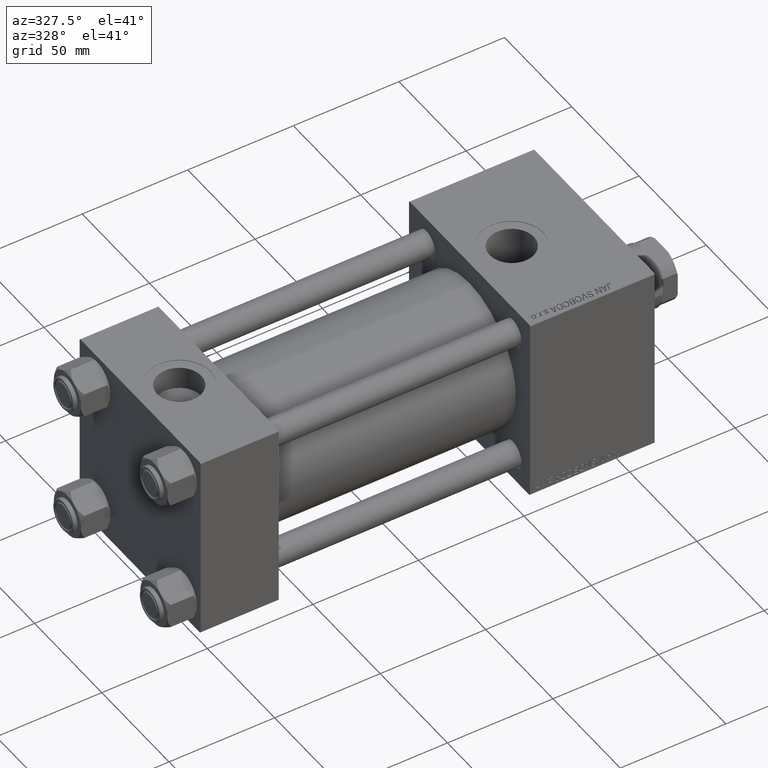
[diagram: clean part render]
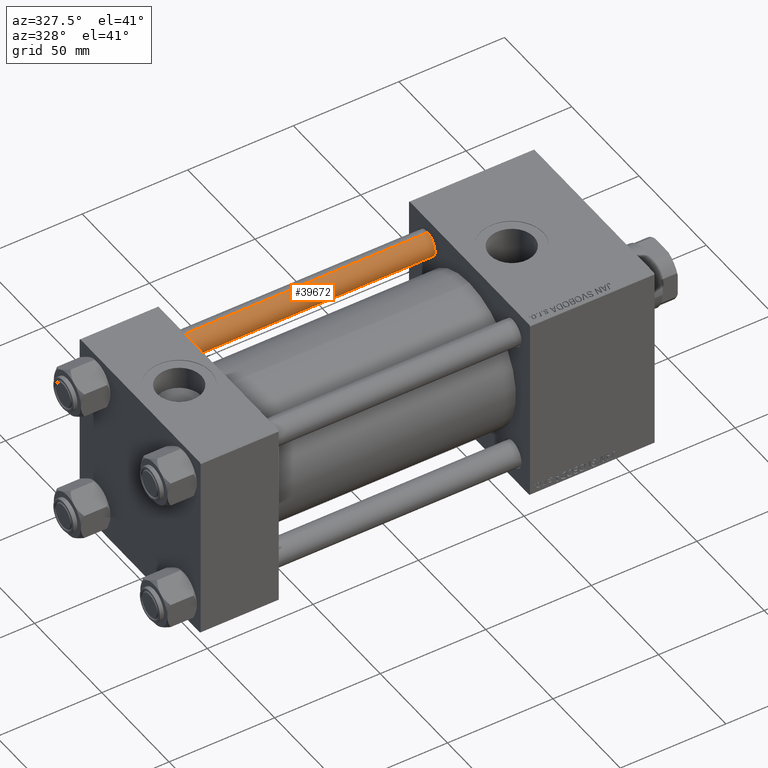
[diagram: same view with one face highlighted and labeled with its STEP entity id]
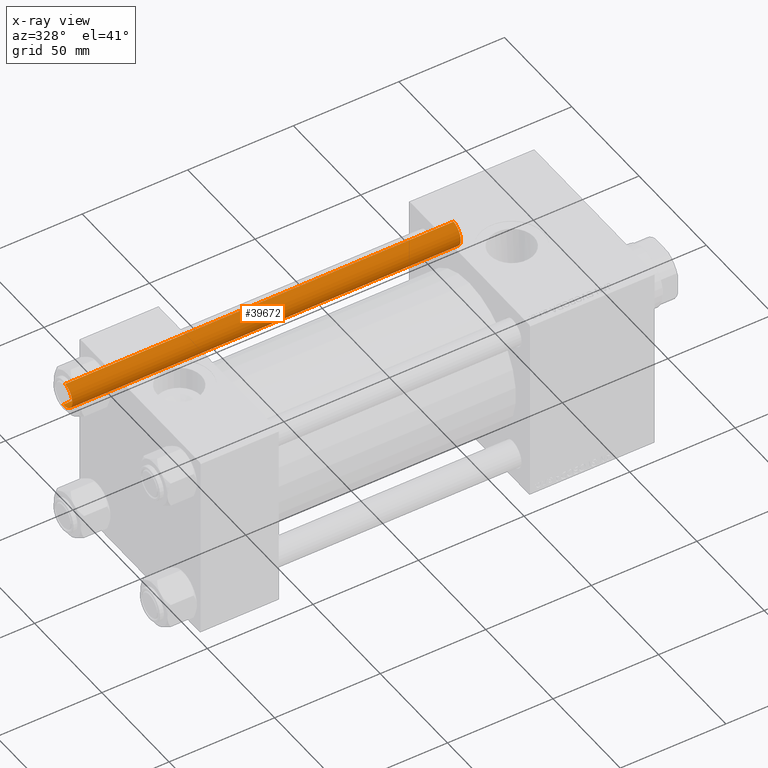
[diagram: x-ray of the same camera — body ghosted, the highlighted face saturated]
A machine part, auxiliary view. The second image highlights one B-rep face of the part: STEP entity #39672.
The next image is the same camera in x-ray: the body ghosted, the highlighted face saturated — about 0% of this face is hidden behind the body in this view.
In plain terms, the highlighted cylindrical surface (edge-blend (fillet) strip) has radius 6 mm, axis along (-1, 0, 0).
Its self-contained STEP definition (entity closure, byte-faithful):
#241 = ORIENTED_EDGE ( 'NONE', *, *, #25526, .T. ) ;
#2917 = CIRCLE ( 'NONE', #14301, 6.000000000000000888 ) ;
#3498 = EDGE_CURVE ( 'NONE', #10772, #16057, #17576, .T. ) ;
#3685 = CARTESIAN_POINT ( 'NONE',  ( -6.000000000000000888, 0.000000000000000000, 0.5000000000000281997 ) ) ;
#5656 = DIRECTION ( 'NONE',  ( 1.000000000000000000, 0.000000000000000000, 0.000000000000000000 ) ) ;
#6215 = ORIENTED_EDGE ( 'NONE', *, *, #47680, .T. ) ;
#7481 = VERTEX_POINT ( 'NONE', #11544 ) ;
#9593 = ORIENTED_EDGE ( 'NONE', *, *, #22438, .T. ) ;
#10772 = VERTEX_POINT ( 'NONE', #13963 ) ;
#10935 = VECTOR ( 'NONE', #25708, 1000.000000000000000 ) ;
#11544 = CARTESIAN_POINT ( 'NONE',  ( -6.000000000000000888, 0.000000000000000000, 184.5000000000000000 ) ) ;
#13963 = CARTESIAN_POINT ( 'NONE',  ( 6.000000000000000888, 7.347880794884120722E-16, 184.5000000000000000 ) ) ;
#14028 = DIRECTION ( 'NONE',  ( 1.000000000000000000, 0.000000000000000000, 0.000000000000000000 ) ) ;
#14301 = AXIS2_PLACEMENT_3D ( 'NONE', #36446, #48216, #5656 ) ;
#14568 = VERTEX_POINT ( 'NONE', #3685 ) ;
#14772 = CARTESIAN_POINT ( 'NONE',  ( 6.000000000000000888, 7.347880794884120722E-16, 185.0000000000000000 ) ) ;
#15543 = CARTESIAN_POINT ( 'NONE',  ( 6.000000000000000888, 7.347880794884120722E-16, 0.5000000000000281997 ) ) ;
#16057 = VERTEX_POINT ( 'NONE', #15543 ) ;
#16319 = AXIS2_PLACEMENT_3D ( 'NONE', #25464, #32584, #14028 ) ;
#17576 = LINE ( 'NONE', #14772, #10935 ) ;
#18107 = AXIS2_PLACEMENT_3D ( 'NONE', #43575, #21149, #20154 ) ;
#20154 = DIRECTION ( 'NONE',  ( -1.000000000000000000, 0.000000000000000000, 0.000000000000000000 ) ) ;
#21149 = DIRECTION ( 'NONE',  ( -0.000000000000000000, -0.000000000000000000, -1.000000000000000000 ) ) ;
#22438 = EDGE_CURVE ( 'NONE', #7481, #14568, #29806, .T. ) ;
#24951 = FACE_OUTER_BOUND ( 'NONE', #48324, .T. ) ;
#25464 = CARTESIAN_POINT ( 'NONE',  ( 0.000000000000000000, 0.000000000000000000, 0.5000000000000281997 ) ) ;
#25526 = EDGE_CURVE ( 'NONE', #14568, #16057, #32532, .T. ) ;
#25708 = DIRECTION ( 'NONE',  ( -0.000000000000000000, -0.000000000000000000, -1.000000000000000000 ) ) ;
#28719 = ORIENTED_EDGE ( 'NONE', *, *, #3498, .F. ) ;
#28775 = CYLINDRICAL_SURFACE ( 'NONE', #18107, 6.000000000000000888 ) ;
#29806 = LINE ( 'NONE', #37194, #36511 ) ;
#32532 = CIRCLE ( 'NONE', #16319, 6.000000000000000888 ) ;
#32584 = DIRECTION ( 'NONE',  ( -0.000000000000000000, -0.000000000000000000, 1.000000000000000000 ) ) ;
#36446 = CARTESIAN_POINT ( 'NONE',  ( 0.000000000000000000, 0.000000000000000000, 184.5000000000000000 ) ) ;
#36511 = VECTOR ( 'NONE', #49208, 1000.000000000000000 ) ;
#37194 = CARTESIAN_POINT ( 'NONE',  ( -6.000000000000000888, 0.000000000000000000, 185.0000000000000000 ) ) ;
#39672 = ADVANCED_FACE ( 'NONE', ( #24951 ), #28775, .T. ) ;
#43575 = CARTESIAN_POINT ( 'NONE',  ( 0.000000000000000000, 0.000000000000000000, 185.0000000000000000 ) ) ;
#47680 = EDGE_CURVE ( 'NONE', #10772, #7481, #2917, .T. ) ;
#48216 = DIRECTION ( 'NONE',  ( 0.000000000000000000, 0.000000000000000000, -1.000000000000000000 ) ) ;
#48324 = EDGE_LOOP ( 'NONE', ( #28719, #6215, #9593, #241 ) ) ;
#49208 = DIRECTION ( 'NONE',  ( -0.000000000000000000, -0.000000000000000000, -1.000000000000000000 ) ) ;